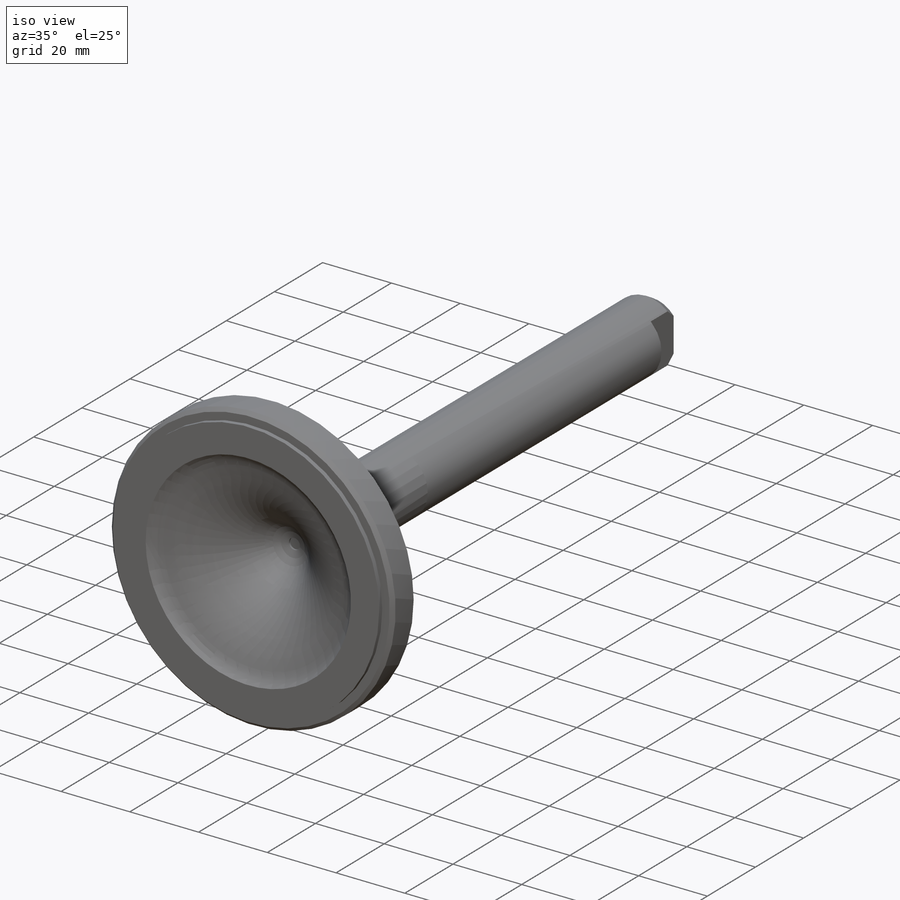
[diagram: iso view]
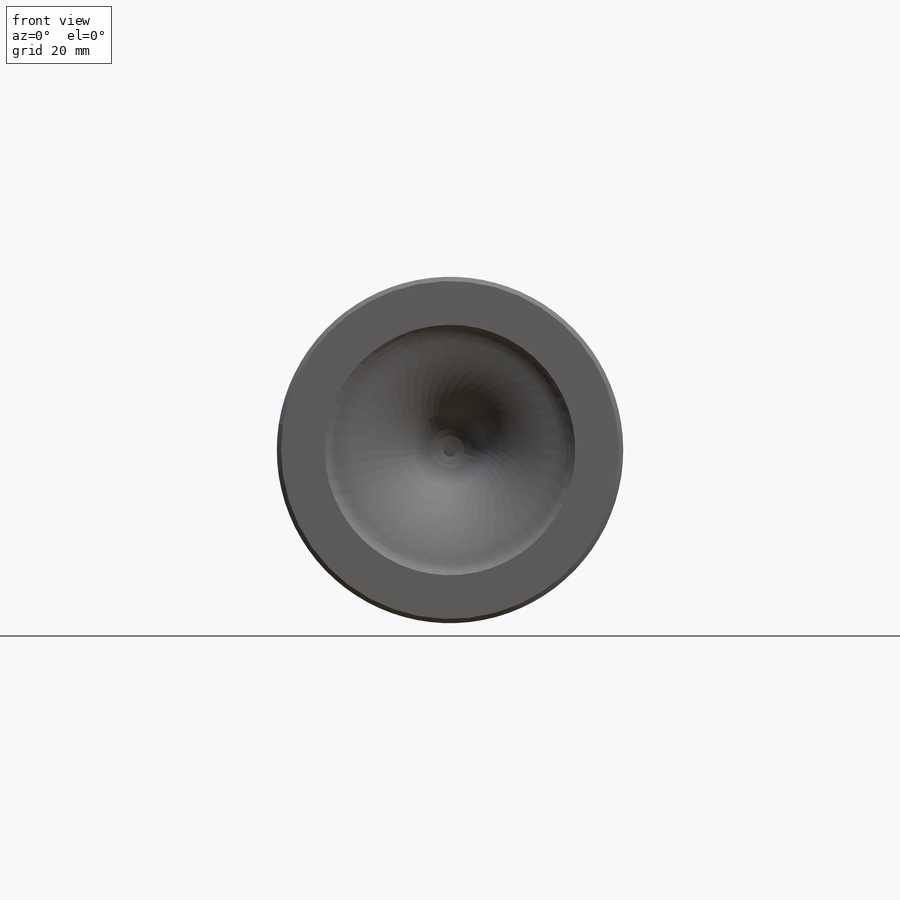
[diagram: front view]
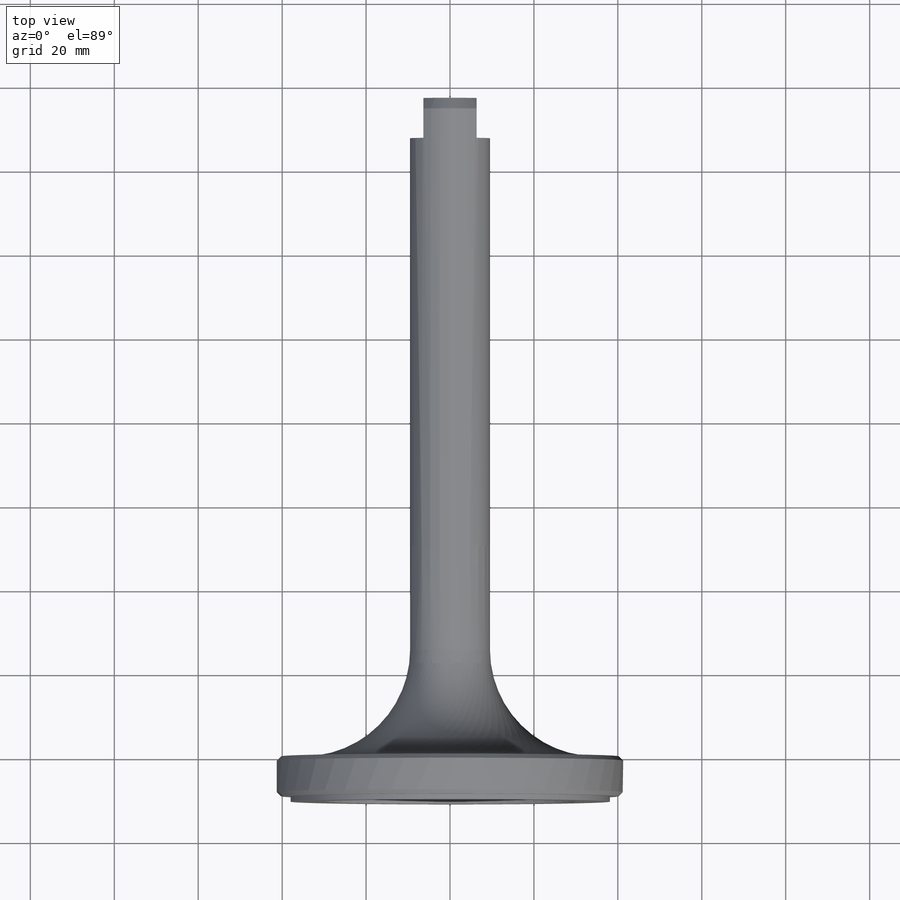
[diagram: top view]
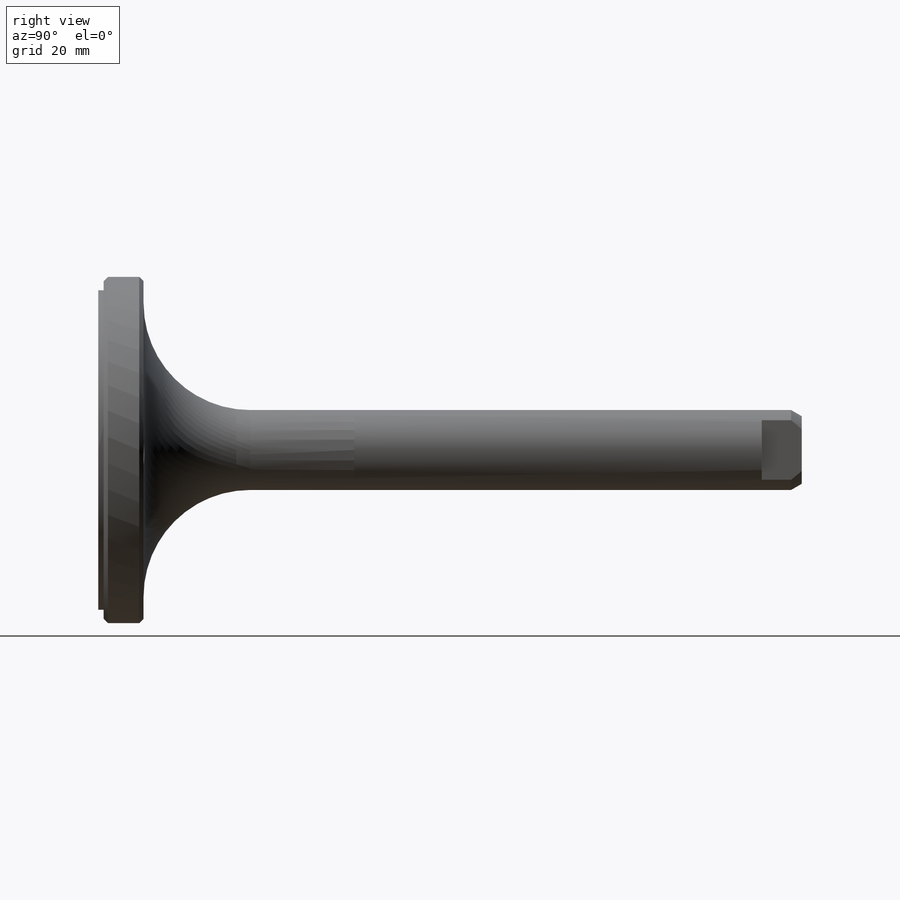
[diagram: right view]
SOLIDWORKS PART (.sldprt)
format: sldprt  version: not decoded by parser v0  size: 691,200 bytes
history: native  units: mm
features: cut_extrude x20, sketch x9, plane x5, fillet x4, mirror x4, cut_revolve x3, extrude x2, material x1 + 1 further entry (+12 scaffold rows collapsed)
feature tree (61):
  scaffold x12  (default folders/planes/origin — collapsed)
  material  "AISI 4340 Steel, normalized"
  plane  "Plane1"
  plane  "Plane2"
  plane  "Plane3"
  "Design Table"
  sketch  "Sketch1"  dims[D1=82.55mm]
  extrude  "Base-Extrude"  Depth=10.795mm
  sketch  "Sketch6"  dims[D1=19.05mm]
  extrude  "Boss-Extrude2"  Depth=156.845mm
  fillet  "Fillet1"  Radius=25.4mm
  plane  "Plane4"  Offset=189.23mm
  plane  "Plane5"  Offset=0.79375mm
  sketch  "Sketch9"  dims[D2=~6.746875mm D1=34.925mm]
  cut_extrude  "Cut-Extrude2"  Depth=4.7625mm
  mirror  "Mirror1"
  cut_extrude  "algFaceTag"  [1 undecoded]
  fillet  "FaceIDTag-9"  Radius=9 faceID=9
  mirror  "cosFaceIDTag"  faceID=0
  fillet  "FaceIDTag-13"  Radius=13 faceID=13
  sketch  "Sketch26"  dims[D1=76.2mm]
  cut_extrude  "Cut-Extrude7"  Depth=1.27mm
  sketch  "Sketch19"  dims[c1.D1=19.05mm c1.D2=6.35mm c1.D3=7.62mm c1.D4=4.7625mm c2.D1=4.7625mm c3.D1=90.0deg c4.D1=9.525mm c4.D3=180.975mm c5.D1=9.525mm c5.D3=12.7mm c5.D4=167.64mm]
  cut_extrude  "Cut-Extrude6"  [1 undecoded]
  mirror  "Mirror2"
  fillet  "COSMOSXpress_Study:Material-1"  Radius=30463139 cosMaterialEX=30463139 cosMaterialNUXY=0.28 cosMaterialGXY=0 cosMaterialALPX=0 cosMaterialDENS=0.27818 cosMaterialKX=0 cosMaterialC=0 Units=1 AnalysisType=0 MeshType=0 cosMaterialSIGYLD=90000.007 cosMaterialSIGXT=0 cosMaterialSIGXC=0
  cut_extrude  "sMaterialSourceName"  [1 undecoded]
  cut_extrude  "sMaterialName"  [1 undecoded]
  cut_extrude  "cosFMVItemName"  [1 undecoded]
  cut_extrude  "cosMaterialName"  [1 undecoded]
  cut_extrude  "cosComponentName"  Depth=0 cosMaterialModel=0 cosMaterialEY=0 cosMaterialEZ=0 cosMaterialNUXZ=0 cosMaterialNUYZ=0 cosMaterialGXZ=0 cosMaterialGYZ=0 cosMaterialALPY=0 cosMaterialALPZ=0 cosMaterialKY=0 cosMaterialKZ=0
  cut_extrude  "cosMaterialType"  [1 undecoded]
  cut_extrude  "cosMaterialLibFile"  [1 undecoded]
  cut_extrude  "cosMaterialRefPlaneName"  Depth=1 cosMaterialSource=1
  mirror  "cosMaterial7"  cosMaterialEX=0 cosMaterialNUXY=0 cosMaterialGXY=0 cosMaterialALPX=0 cosMaterialDENS=0 cosMaterialKX=0 cosMaterialC=0 Units=0 AnalysisType=0 MeshType=0 cosMaterialSIGYLD=0 cosMaterialSIGXT=0 cosMaterialSIGXC=0
  cut_extrude  "sMaterialSourceName"  [1 undecoded]
  cut_extrude  "sMaterialName"  [1 undecoded]
  cut_extrude  "cosFMVItemName"  [1 undecoded]
  cut_extrude  "cosMaterialName"  [1 undecoded]
  cut_extrude  "cosComponentName"  Depth=0 cosMaterialModel=0 cosMaterialEY=0 cosMaterialEZ=0 cosMaterialNUXZ=0 cosMaterialNUYZ=0 cosMaterialGXZ=0 cosMaterialGYZ=0 cosMaterialALPY=0 cosMaterialALPZ=0 cosMaterialKY=0 cosMaterialKZ=0
  cut_extrude  "cosMaterialType"  [1 undecoded]
  cut_extrude  "cosMaterialLibFile"  [1 undecoded]
  cut_extrude  "cosMaterialRefPlaneName"  Depth=0 cosMaterialSource=0
  sketch  "Sketch21"  dims[c1.D1=34.925mm c1.D3=6.35mm c1.D4=7.874mm c1.D2=3.81mm c1.D5=3.175mm c1.D6=8.255mm c2.D2=3.81mm]
  cut_revolve  "Cut-Revolve6"  Angle=360deg
  sketch  "Sketch22"  dims[c1.D1=19.05mm c1.D2=~3.920169mm c2.D2=30.0deg c2.D3=2.54mm c2.D4=167.64mm]
  sketch  "Sketch23"  dims[D1=82.55mm D2=1.016mm D3=1.27mm D4=9.525mm]
  cut_revolve  "Cut-Revolve7"  Angle=360deg
  cut_revolve  "Cut-Revolve8"  Angle=360deg
  sketch  "Sketch27"  dims[D1=60.96mm]
decode coverage: 26 of 42 modeling features carry decoded parameters; 1 rows unclassified (native names shown)
note: ~ marks probable driven/reference dimensions
note: 14 parameter values undecoded
summary: no parameter record found for 14 features
note: suppression state not decoded; provenance and decode notes live in map.json
